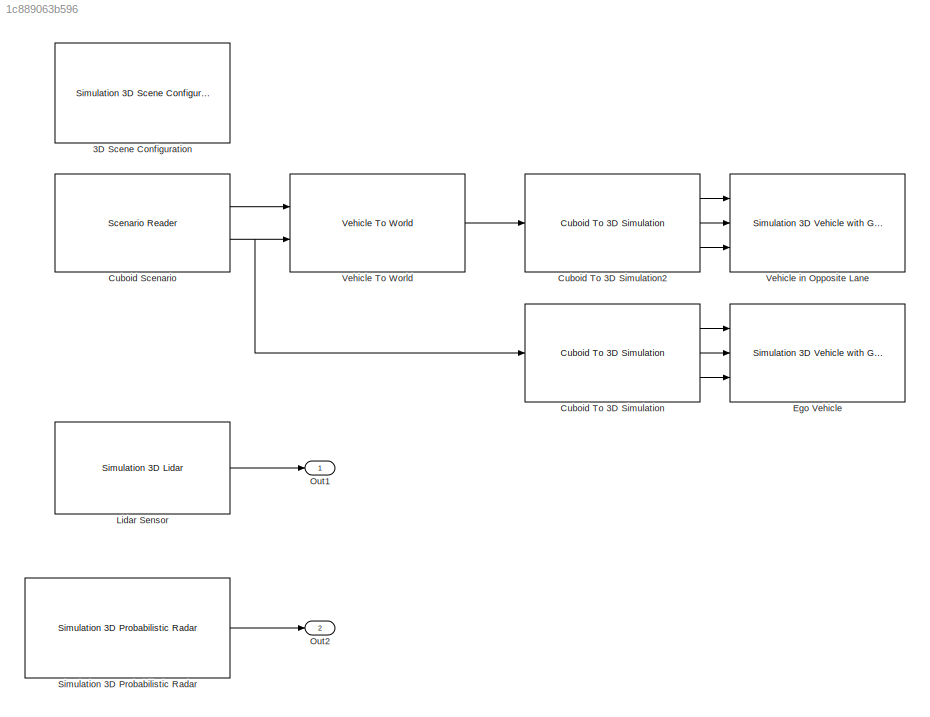
MODEL slx_1c889063b596
KIND model
CONFIG AbsTol = auto
CONFIG EnableMultiTasking = off
CONFIG FixedStep = auto
CONFIG MaxStep = auto
CONFIG MinStep = auto
CONFIG RelTol = 1e-3
CONFIG SampleTimeConstraint = Unconstrained
CONFIG SolverName = VariableStepAuto
CONFIG StartTime = 0.0
CONFIG StopTime = 5.0
BLOCK [Reference] 3D Scene Configuration  REF=sim3dlib/Simulation 3D Scene Configuration
  Ports = []
  Priority = 0
  SourceBlock = sim3dlib/Simulation 3D Scene Configuration
  SourceProductBaseCode = AE,DR,UV,VE
  SourceType = Simulation 3D Scene Configuration
BLOCK [Reference] Cuboid Scenario  REF=drivingscenarioandsensors/Scenario Reader
  Ports = [0, 2]
  SourceBlock = drivingscenarioandsensors/Scenario Reader
  SourceProductBaseCode = DR
  SourceType = driving.scenario.internal.ScenarioReader
BLOCK [Reference] Cuboid To 3D Simulation  REF=drivingscenarioandsensors/Cuboid To 3D Simulation
  Ports = [1, 3]
  SourceBlock = drivingscenarioandsensors/Cuboid To 3D Simulation
  SourceProductBaseCode = DR
  SourceType = driving.scenario.internal.CuboidTo3DSimulation
BLOCK [Reference] Cuboid To 3D Simulation2  REF=drivingscenarioandsensors/Cuboid To 3D Simulation
  Ports = [1, 3]
  SourceBlock = drivingscenarioandsensors/Cuboid To 3D Simulation
  SourceProductBaseCode = DR
  SourceType = driving.scenario.internal.CuboidTo3DSimulation
BLOCK [Reference] Ego Vehicle  REF=sim3dautolib/Simulation 3D Vehicle with Ground Following
  Ports = [3]
  Priority = -1
  SourceBlock = sim3dautolib/Simulation 3D Vehicle with Ground Following
  SourceProductBaseCode = AE,DR,UV,VE
  SourceType = Simulation 3D Vehicle with Ground Following
BLOCK [Reference] Lidar Sensor  REF=sim3dphyssensorlib/Simulation 3D Lidar
  Ports = [0, 1]
  Priority = 1
  SourceBlock = sim3dphyssensorlib/Simulation 3D Lidar
  SourceProductBaseCode = AE,DR,UV,VE
  SourceType = Simulation 3D Lidar
BLOCK [Outport] Out1
BLOCK [Outport] Out2
  Port = 2
BLOCK [Reference] Simulation 3D Probabilistic Radar  REF=sim3dprobsensorlib/Simulation 3D Probabilistic Radar
  Ports = [0, 1]
  Priority = 1
  SourceBlock = sim3dprobsensorlib/Simulation 3D Probabilistic Radar
  SourceProductBaseCode = AE,DR,UV,VE
  SourceType = Simulation 3D Probabilistic Radar
BLOCK [Reference] Vehicle To World  REF=drivingscenarioandsensors/Vehicle To World
  Ports = [2, 1]
  SourceBlock = drivingscenarioandsensors/Vehicle To World
  SourceProductBaseCode = DR
  SourceType = driving.scenario.internal.VehicleToWorld
BLOCK [Reference] Vehicle in Opposite Lane  REF=sim3dautolib/Simulation 3D Vehicle with Ground Following
  Ports = [3]
  Priority = -1
  SourceBlock = sim3dautolib/Simulation 3D Vehicle with Ground Following
  SourceProductBaseCode = AE,DR,UV,VE
  SourceType = Simulation 3D Vehicle with Ground Following
LINE Cuboid Scenario:1 -> Vehicle To World:1
NET Cuboid Scenario:2 -> Cuboid To 3D Simulation:1, Vehicle To World:2
LINE Cuboid To 3D Simulation2:1 -> Vehicle in Opposite Lane:1
LINE Cuboid To 3D Simulation2:2 -> Vehicle in Opposite Lane:2
LINE Cuboid To 3D Simulation2:3 -> Vehicle in Opposite Lane:3
LINE Cuboid To 3D Simulation:1 -> Ego Vehicle:1
LINE Cuboid To 3D Simulation:2 -> Ego Vehicle:2
LINE Cuboid To 3D Simulation:3 -> Ego Vehicle:3
LINE Lidar Sensor:1 -> Out1:1
LINE Simulation 3D Probabilistic Radar:1 -> Out2:1
LINE Vehicle To World:1 -> Cuboid To 3D Simulation2:1
note: NET lines group one-source signal fan-out (src -> all destinations, sorted); 1:1 wires keep LINE
